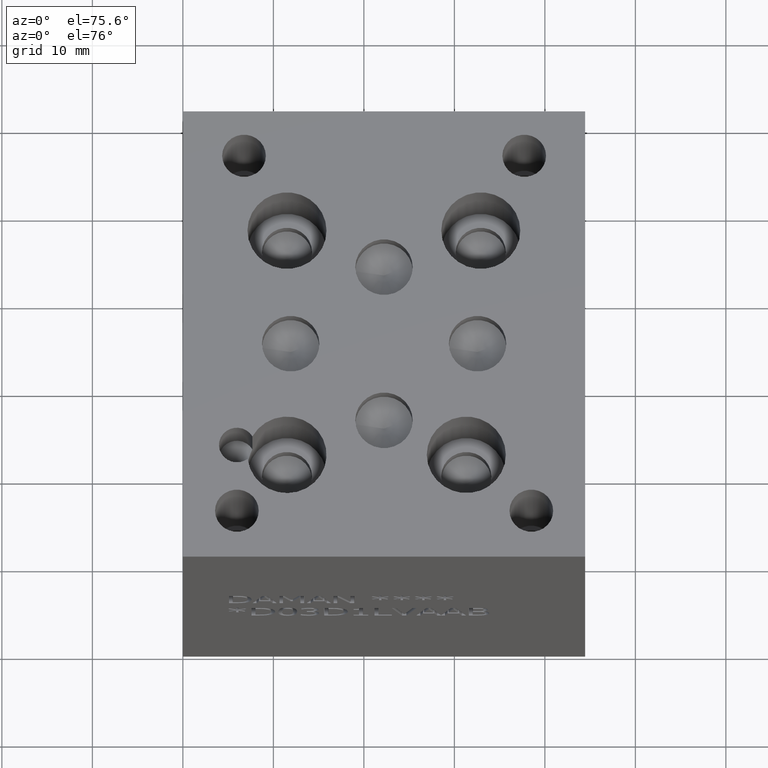
[diagram: clean part render]
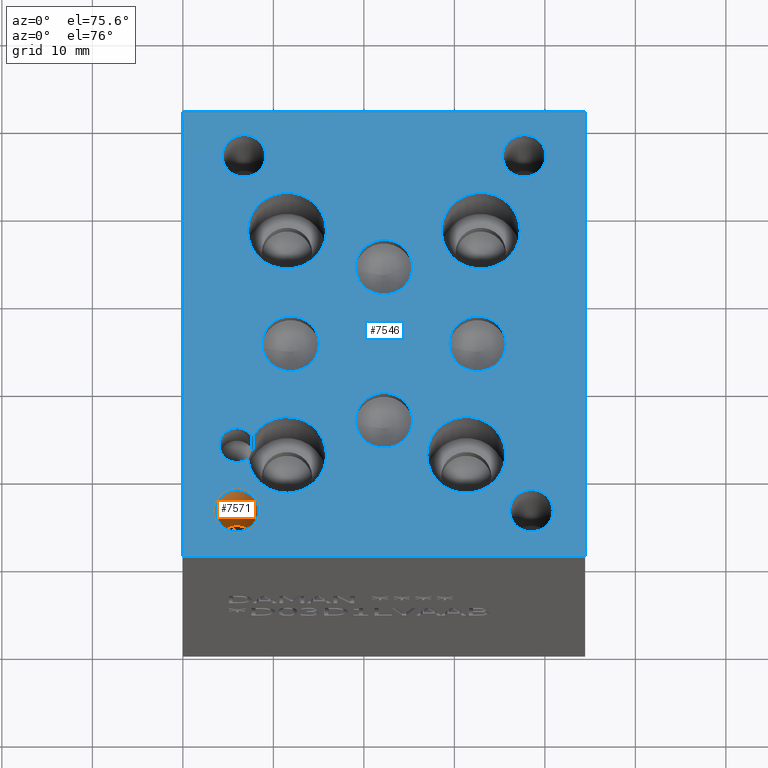
[diagram: same view with the hole feature highlighted: cylindrical wall and planar end face, labeled with their STEP entity ids]
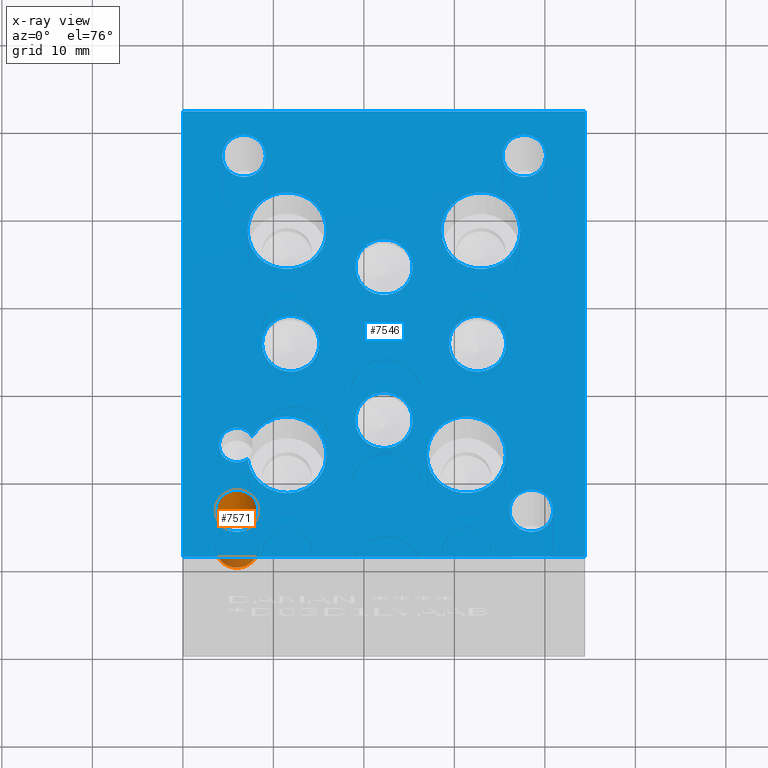
[diagram: x-ray of the same camera — body ghosted, the hole faces saturated]
A machine part, auxiliary view. The highlighted faces form one hole feature of diameter 4.826 mm: the cylindrical wall (entity #7571, orange) and its adjacent planar end face (entity #7546, blue) — they share a circular edge in the B-rep.
The next image is the same camera in x-ray (body ghosted, the hole faces saturated) — the bore reads through the body.
Wall:
#98=CIRCLE('',#7936,2.413);
#99=CIRCLE('',#7937,2.413);
#142=CIRCLE('',#8004,2.413);
#143=CIRCLE('',#8005,2.413);
#172=CYLINDRICAL_SURFACE('',#8007,2.413);
#822=FACE_OUTER_BOUND('',#1257,.T.);
#1257=EDGE_LOOP('',(#6583,#6584,#6585,#6586,#6587,#6588));
#2043=LINE('',#12669,#2821);
#2821=VECTOR('',#9619,2.413);
#3483=VERTEX_POINT('',#12524);
#3484=VERTEX_POINT('',#12525);
#3534=VERTEX_POINT('',#12662);
#3535=VERTEX_POINT('',#12663);
#4496=EDGE_CURVE('',#3483,#3484,#98,.T.);
#4497=EDGE_CURVE('',#3484,#3483,#99,.T.);
#4559=EDGE_CURVE('',#3534,#3535,#142,.T.);
#4560=EDGE_CURVE('',#3535,#3534,#143,.T.);
#4562=EDGE_CURVE('',#3484,#3535,#2043,.T.);
#6583=ORIENTED_EDGE('',*,*,#4496,.F.);
#6584=ORIENTED_EDGE('',*,*,#4497,.F.);
#6585=ORIENTED_EDGE('',*,*,#4562,.T.);
#6586=ORIENTED_EDGE('',*,*,#4559,.F.);
#6587=ORIENTED_EDGE('',*,*,#4560,.F.);
#6588=ORIENTED_EDGE('',*,*,#4562,.F.);
#7571=ADVANCED_FACE('',(#822),#172,.F.);
#7936=AXIS2_PLACEMENT_3D('',#12526,#9456,#9457);
#7937=AXIS2_PLACEMENT_3D('',#12527,#9458,#9459);
#8004=AXIS2_PLACEMENT_3D('',#12664,#9611,#9612);
#8005=AXIS2_PLACEMENT_3D('',#12665,#9613,#9614);
#8007=AXIS2_PLACEMENT_3D('',#12668,#9617,#9618);
#9456=DIRECTION('center_axis',(0.,0.,-1.));
#9457=DIRECTION('ref_axis',(1.,0.,0.));
#9458=DIRECTION('center_axis',(0.,0.,-1.));
#9459=DIRECTION('ref_axis',(1.,0.,0.));
#9611=DIRECTION('center_axis',(0.,0.,1.));
#9612=DIRECTION('ref_axis',(1.,0.,0.));
#9613=DIRECTION('center_axis',(0.,0.,1.));
#9614=DIRECTION('ref_axis',(1.,0.,0.));
#9617=DIRECTION('center_axis',(0.,0.,1.));
#9618=DIRECTION('ref_axis',(1.,0.,0.));
#9619=DIRECTION('',(0.,0.,-1.));
#12524=CARTESIAN_POINT('',(8.382,5.2324,44.45));
#12525=CARTESIAN_POINT('',(3.556,5.2324,44.45));
#12526=CARTESIAN_POINT('Origin',(5.969,5.2324,44.45));
#12527=CARTESIAN_POINT('Origin',(5.969,5.2324,44.45));
#12662=CARTESIAN_POINT('',(8.382,5.2324,28.448));
#12663=CARTESIAN_POINT('',(3.556,5.2324,28.448));
#12664=CARTESIAN_POINT('Origin',(5.969,5.2324,28.448));
#12665=CARTESIAN_POINT('Origin',(5.969,5.2324,28.448));
#12668=CARTESIAN_POINT('Origin',(5.969,5.2324,36.449));
#12669=CARTESIAN_POINT('',(3.556,5.2324,36.449));
End face:
#76=CIRCLE('',#7900,4.3688);
#77=CIRCLE('',#7901,4.3688);
#83=CIRCLE('',#7911,4.3688);
#89=CIRCLE('',#7921,4.3688);
#90=CIRCLE('',#7922,4.3688);
#96=CIRCLE('',#7932,4.3688);
#97=CIRCLE('',#7933,4.3688);
#98=CIRCLE('',#7936,2.413);
#99=CIRCLE('',#7937,2.413);
#100=CIRCLE('',#7938,2.413);
#101=CIRCLE('',#7939,2.413);
#102=CIRCLE('',#7940,2.413);
#103=CIRCLE('',#7941,2.413);
#104=CIRCLE('',#7942,2.413);
#105=CIRCLE('',#7943,2.413);
#106=CIRCLE('',#7944,1.9812);
#107=CIRCLE('',#7945,3.175);
#108=CIRCLE('',#7946,3.175);
#109=CIRCLE('',#7947,3.175);
#110=CIRCLE('',#7948,3.175);
#111=CIRCLE('',#7949,3.175);
#112=CIRCLE('',#7950,3.175);
#113=CIRCLE('',#7951,3.175);
#114=CIRCLE('',#7952,3.175);
#211=FACE_BOUND('',#1217,.T.);
#212=FACE_BOUND('',#1218,.T.);
#213=FACE_BOUND('',#1219,.T.);
#214=FACE_BOUND('',#1220,.T.);
#215=FACE_BOUND('',#1221,.T.);
#216=FACE_BOUND('',#1222,.T.);
#217=FACE_BOUND('',#1223,.T.);
#218=FACE_BOUND('',#1224,.T.);
#219=FACE_BOUND('',#1225,.T.);
#220=FACE_BOUND('',#1226,.T.);
#221=FACE_BOUND('',#1227,.T.);
#222=FACE_BOUND('',#1228,.T.);
#797=FACE_OUTER_BOUND('',#1216,.T.);
#1216=EDGE_LOOP('',(#6443,#6444,#6445,#6446));
#1217=EDGE_LOOP('',(#6447,#6448));
#1218=EDGE_LOOP('',(#6449,#6450));
#1219=EDGE_LOOP('',(#6451,#6452));
#1220=EDGE_LOOP('',(#6453,#6454));
#1221=EDGE_LOOP('',(#6455,#6456));
#1222=EDGE_LOOP('',(#6457,#6458));
#1223=EDGE_LOOP('',(#6459,#6460));
#1224=EDGE_LOOP('',(#6461,#6462));
#1225=EDGE_LOOP('',(#6463,#6464));
#1226=EDGE_LOOP('',(#6465,#6466));
#1227=EDGE_LOOP('',(#6467,#6468));
#1228=EDGE_LOOP('',(#6469,#6470));
#1612=LINE('',#11386,#2390);
#2021=LINE('',#12520,#2799);
#2022=LINE('',#12522,#2800);
#2023=LINE('',#12523,#2801);
#2390=VECTOR('',#8562,10.);
#2799=VECTOR('',#9453,10.);
#2800=VECTOR('',#9454,10.);
#2801=VECTOR('',#9455,10.);
#3138=VERTEX_POINT('',#11383);
#3139=VERTEX_POINT('',#11385);
#3452=VERTEX_POINT('',#12427);
#3453=VERTEX_POINT('',#12428);
#3461=VERTEX_POINT('',#12450);
#3464=VERTEX_POINT('',#12469);
#3471=VERTEX_POINT('',#12489);
#3472=VERTEX_POINT('',#12490);
#3479=VERTEX_POINT('',#12511);
#3480=VERTEX_POINT('',#12512);
#3481=VERTEX_POINT('',#12519);
#3482=VERTEX_POINT('',#12521);
#3483=VERTEX_POINT('',#12524);
#3484=VERTEX_POINT('',#12525);
#3485=VERTEX_POINT('',#12528);
#3486=VERTEX_POINT('',#12529);
#3487=VERTEX_POINT('',#12532);
#3488=VERTEX_POINT('',#12533);
#3489=VERTEX_POINT('',#12536);
#3490=VERTEX_POINT('',#12537);
#3491=VERTEX_POINT('',#12541);
#3492=VERTEX_POINT('',#12542);
#3493=VERTEX_POINT('',#12545);
#3494=VERTEX_POINT('',#12546);
#3495=VERTEX_POINT('',#12549);
#3496=VERTEX_POINT('',#12550);
#3497=VERTEX_POINT('',#12553);
#3498=VERTEX_POINT('',#12554);
#4003=EDGE_CURVE('',#3139,#3138,#1612,.T.);
#4456=EDGE_CURVE('',#3452,#3453,#76,.T.);
#4457=EDGE_CURVE('',#3453,#3452,#77,.T.);
#4471=EDGE_CURVE('',#3461,#3464,#83,.T.);
#4479=EDGE_CURVE('',#3471,#3472,#89,.T.);
#4480=EDGE_CURVE('',#3472,#3471,#90,.T.);
#4489=EDGE_CURVE('',#3479,#3480,#96,.T.);
#4490=EDGE_CURVE('',#3480,#3479,#97,.T.);
#4493=EDGE_CURVE('',#3138,#3481,#2021,.T.);
#4494=EDGE_CURVE('',#3481,#3482,#2022,.T.);
#4495=EDGE_CURVE('',#3482,#3139,#2023,.T.);
#4496=EDGE_CURVE('',#3483,#3484,#98,.T.);
#4497=EDGE_CURVE('',#3484,#3483,#99,.T.);
#4498=EDGE_CURVE('',#3485,#3486,#100,.T.);
#4499=EDGE_CURVE('',#3486,#3485,#101,.T.);
#4500=EDGE_CURVE('',#3487,#3488,#102,.T.);
#4501=EDGE_CURVE('',#3488,#3487,#103,.T.);
#4502=EDGE_CURVE('',#3489,#3490,#104,.T.);
#4503=EDGE_CURVE('',#3490,#3489,#105,.T.);
#4504=EDGE_CURVE('',#3464,#3461,#106,.T.);
#4505=EDGE_CURVE('',#3491,#3492,#107,.T.);
#4506=EDGE_CURVE('',#3492,#3491,#108,.T.);
#4507=EDGE_CURVE('',#3493,#3494,#109,.T.);
#4508=EDGE_CURVE('',#3494,#3493,#110,.T.);
#4509=EDGE_CURVE('',#3495,#3496,#111,.T.);
#4510=EDGE_CURVE('',#3496,#3495,#112,.T.);
#4511=EDGE_CURVE('',#3497,#3498,#113,.T.);
#4512=EDGE_CURVE('',#3498,#3497,#114,.T.);
#6443=ORIENTED_EDGE('',*,*,#4003,.T.);
#6444=ORIENTED_EDGE('',*,*,#4493,.T.);
#6445=ORIENTED_EDGE('',*,*,#4494,.T.);
#6446=ORIENTED_EDGE('',*,*,#4495,.T.);
#6447=ORIENTED_EDGE('',*,*,#4496,.T.);
#6448=ORIENTED_EDGE('',*,*,#4497,.T.);
#6449=ORIENTED_EDGE('',*,*,#4498,.T.);
#6450=ORIENTED_EDGE('',*,*,#4499,.T.);
#6451=ORIENTED_EDGE('',*,*,#4500,.T.);
#6452=ORIENTED_EDGE('',*,*,#4501,.T.);
#6453=ORIENTED_EDGE('',*,*,#4502,.T.);
#6454=ORIENTED_EDGE('',*,*,#4503,.T.);
#6455=ORIENTED_EDGE('',*,*,#4471,.T.);
#6456=ORIENTED_EDGE('',*,*,#4504,.T.);
#6457=ORIENTED_EDGE('',*,*,#4505,.T.);
#6458=ORIENTED_EDGE('',*,*,#4506,.T.);
#6459=ORIENTED_EDGE('',*,*,#4507,.T.);
#6460=ORIENTED_EDGE('',*,*,#4508,.T.);
#6461=ORIENTED_EDGE('',*,*,#4509,.T.);
#6462=ORIENTED_EDGE('',*,*,#4510,.T.);
#6463=ORIENTED_EDGE('',*,*,#4511,.T.);
#6464=ORIENTED_EDGE('',*,*,#4512,.T.);
#6465=ORIENTED_EDGE('',*,*,#4489,.T.);
#6466=ORIENTED_EDGE('',*,*,#4490,.T.);
#6467=ORIENTED_EDGE('',*,*,#4479,.T.);
#6468=ORIENTED_EDGE('',*,*,#4480,.T.);
#6469=ORIENTED_EDGE('',*,*,#4456,.T.);
#6470=ORIENTED_EDGE('',*,*,#4457,.T.);
#6881=PLANE('',#7935);
#7546=ADVANCED_FACE('',(#797,#211,#212,#213,#214,#215,#216,#217,#218,#219,
#220,#221,#222),#6881,.T.);
#7900=AXIS2_PLACEMENT_3D('',#12429,#9368,#9369);
#7901=AXIS2_PLACEMENT_3D('',#12430,#9370,#9371);
#7911=AXIS2_PLACEMENT_3D('',#12471,#9396,#9397);
#7921=AXIS2_PLACEMENT_3D('',#12491,#9418,#9419);
#7922=AXIS2_PLACEMENT_3D('',#12492,#9420,#9421);
#7932=AXIS2_PLACEMENT_3D('',#12513,#9443,#9444);
#7933=AXIS2_PLACEMENT_3D('',#12514,#9445,#9446);
#7935=AXIS2_PLACEMENT_3D('',#12518,#9451,#9452);
#7936=AXIS2_PLACEMENT_3D('',#12526,#9456,#9457);
#7937=AXIS2_PLACEMENT_3D('',#12527,#9458,#9459);
#7938=AXIS2_PLACEMENT_3D('',#12530,#9460,#9461);
#7939=AXIS2_PLACEMENT_3D('',#12531,#9462,#9463);
#7940=AXIS2_PLACEMENT_3D('',#12534,#9464,#9465);
#7941=AXIS2_PLACEMENT_3D('',#12535,#9466,#9467);
#7942=AXIS2_PLACEMENT_3D('',#12538,#9468,#9469);
#7943=AXIS2_PLACEMENT_3D('',#12539,#9470,#9471);
#7944=AXIS2_PLACEMENT_3D('',#12540,#9472,#9473);
#7945=AXIS2_PLACEMENT_3D('',#12543,#9474,#9475);
#7946=AXIS2_PLACEMENT_3D('',#12544,#9476,#9477);
#7947=AXIS2_PLACEMENT_3D('',#12547,#9478,#9479);
#7948=AXIS2_PLACEMENT_3D('',#12548,#9480,#9481);
#7949=AXIS2_PLACEMENT_3D('',#12551,#9482,#9483);
#7950=AXIS2_PLACEMENT_3D('',#12552,#9484,#9485);
#7951=AXIS2_PLACEMENT_3D('',#12555,#9486,#9487);
#7952=AXIS2_PLACEMENT_3D('',#12556,#9488,#9489);
#8562=DIRECTION('',(1.,0.,0.));
#9368=DIRECTION('center_axis',(0.,0.,-1.));
#9369=DIRECTION('ref_axis',(1.,0.,0.));
#9370=DIRECTION('center_axis',(0.,0.,-1.));
#9371=DIRECTION('ref_axis',(1.,0.,0.));
#9396=DIRECTION('center_axis',(0.,0.,-1.));
#9397=DIRECTION('ref_axis',(1.,0.,0.));
#9418=DIRECTION('center_axis',(0.,0.,-1.));
#9419=DIRECTION('ref_axis',(1.,0.,0.));
#9420=DIRECTION('center_axis',(0.,0.,-1.));
#9421=DIRECTION('ref_axis',(1.,0.,0.));
#9443=DIRECTION('center_axis',(0.,0.,-1.));
#9444=DIRECTION('ref_axis',(1.,0.,0.));
#9445=DIRECTION('center_axis',(0.,0.,-1.));
#9446=DIRECTION('ref_axis',(1.,0.,0.));
#9451=DIRECTION('center_axis',(0.,0.,1.));
#9452=DIRECTION('ref_axis',(1.,0.,0.));
#9453=DIRECTION('',(0.,1.,0.));
#9454=DIRECTION('',(-1.,0.,0.));
#9455=DIRECTION('',(0.,-1.,0.));
#9456=DIRECTION('center_axis',(0.,0.,-1.));
#9457=DIRECTION('ref_axis',(1.,0.,0.));
#9458=DIRECTION('center_axis',(0.,0.,-1.));
#9459=DIRECTION('ref_axis',(1.,0.,0.));
#9460=DIRECTION('center_axis',(0.,0.,-1.));
#9461=DIRECTION('ref_axis',(1.,0.,0.));
#9462=DIRECTION('center_axis',(0.,0.,-1.));
#9463=DIRECTION('ref_axis',(1.,0.,0.));
#9464=DIRECTION('center_axis',(0.,0.,-1.));
#9465=DIRECTION('ref_axis',(1.,0.,0.));
#9466=DIRECTION('center_axis',(0.,0.,-1.));
#9467=DIRECTION('ref_axis',(1.,0.,0.));
#9468=DIRECTION('center_axis',(0.,0.,-1.));
#9469=DIRECTION('ref_axis',(1.,0.,0.));
#9470=DIRECTION('center_axis',(0.,0.,-1.));
#9471=DIRECTION('ref_axis',(1.,0.,0.));
#9472=DIRECTION('center_axis',(0.,0.,-1.));
#9473=DIRECTION('ref_axis',(1.,0.,0.));
#9474=DIRECTION('center_axis',(0.,0.,-1.));
#9475=DIRECTION('ref_axis',(1.,0.,0.));
#9476=DIRECTION('center_axis',(0.,0.,-1.));
#9477=DIRECTION('ref_axis',(1.,0.,0.));
#9478=DIRECTION('center_axis',(0.,0.,-1.));
#9479=DIRECTION('ref_axis',(1.,0.,0.));
#9480=DIRECTION('center_axis',(0.,0.,-1.));
#9481=DIRECTION('ref_axis',(1.,0.,0.));
#9482=DIRECTION('center_axis',(0.,0.,-1.));
#9483=DIRECTION('ref_axis',(1.,0.,0.));
#9484=DIRECTION('center_axis',(0.,0.,-1.));
#9485=DIRECTION('ref_axis',(1.,0.,0.));
#9486=DIRECTION('center_axis',(0.,0.,-1.));
#9487=DIRECTION('ref_axis',(1.,0.,0.));
#9488=DIRECTION('center_axis',(0.,0.,-1.));
#9489=DIRECTION('ref_axis',(1.,0.,0.));
#11383=CARTESIAN_POINT('',(44.45,0.,44.45));
#11385=CARTESIAN_POINT('',(0.,0.,44.45));
#11386=CARTESIAN_POINT('',(0.,0.,44.45));
#12427=CARTESIAN_POINT('',(15.875,37.1856,44.45));
#12428=CARTESIAN_POINT('',(7.1374,37.1856,44.45));
#12429=CARTESIAN_POINT('Origin',(11.5062,37.1856,44.45));
#12430=CARTESIAN_POINT('Origin',(11.5062,37.1856,44.45));
#12450=CARTESIAN_POINT('',(7.68218652135304,13.7204604921583,44.45));
#12469=CARTESIAN_POINT('',(7.1621157835398,11.1437463820835,44.45));
#12471=CARTESIAN_POINT('Origin',(11.5062,11.6078,44.45));
#12489=CARTESIAN_POINT('',(35.687,11.6078,44.45));
#12490=CARTESIAN_POINT('',(26.9494,11.6078,44.45));
#12491=CARTESIAN_POINT('Origin',(31.3182,11.6078,44.45));
#12492=CARTESIAN_POINT('Origin',(31.3182,11.6078,44.45));
#12511=CARTESIAN_POINT('',(37.2872,37.1856,44.45));
#12512=CARTESIAN_POINT('',(28.5496,37.1856,44.45));
#12513=CARTESIAN_POINT('Origin',(32.9184,37.1856,44.45));
#12514=CARTESIAN_POINT('Origin',(32.9184,37.1856,44.45));
#12518=CARTESIAN_POINT('Origin',(22.225,25.4,44.45));
#12519=CARTESIAN_POINT('',(44.45,50.8,44.45));
#12520=CARTESIAN_POINT('',(44.45,0.,44.45));
#12521=CARTESIAN_POINT('',(0.,50.8,44.45));
#12522=CARTESIAN_POINT('',(44.45,50.8,44.45));
#12523=CARTESIAN_POINT('',(0.,50.8,44.45));
#12524=CARTESIAN_POINT('',(8.382,5.2324,44.45));
#12525=CARTESIAN_POINT('',(3.556,5.2324,44.45));
#12526=CARTESIAN_POINT('Origin',(5.969,5.2324,44.45));
#12527=CARTESIAN_POINT('Origin',(5.969,5.2324,44.45));
#12528=CARTESIAN_POINT('',(40.132,45.72,44.45));
#12529=CARTESIAN_POINT('',(35.306,45.72,44.45));
#12530=CARTESIAN_POINT('Origin',(37.719,45.72,44.45));
#12531=CARTESIAN_POINT('Origin',(37.719,45.72,44.45));
#12532=CARTESIAN_POINT('',(9.1694,45.72,44.45));
#12533=CARTESIAN_POINT('',(4.3434,45.72,44.45));
#12534=CARTESIAN_POINT('Origin',(6.7564,45.72,44.45));
#12535=CARTESIAN_POINT('Origin',(6.7564,45.72,44.45));
#12536=CARTESIAN_POINT('',(40.9194,5.2324,44.45));
#12537=CARTESIAN_POINT('',(36.0934,5.2324,44.45));
#12538=CARTESIAN_POINT('Origin',(38.5064,5.2324,44.45));
#12539=CARTESIAN_POINT('Origin',(38.5064,5.2324,44.45));
#12540=CARTESIAN_POINT('Origin',(5.969,12.7254,44.45));
#12541=CARTESIAN_POINT('',(25.4,15.5448,44.45));
#12542=CARTESIAN_POINT('',(19.05,15.5448,44.45));
#12543=CARTESIAN_POINT('Origin',(22.225,15.5448,44.45));
#12544=CARTESIAN_POINT('Origin',(22.225,15.5448,44.45));
#12545=CARTESIAN_POINT('',(35.7378,24.2824,44.45));
#12546=CARTESIAN_POINT('',(29.3878,24.2824,44.45));
#12547=CARTESIAN_POINT('Origin',(32.5628,24.2824,44.45));
#12548=CARTESIAN_POINT('Origin',(32.5628,24.2824,44.45));
#12549=CARTESIAN_POINT('',(15.0876,24.2824,44.45));
#12550=CARTESIAN_POINT('',(8.7376,24.2824,44.45));
#12551=CARTESIAN_POINT('Origin',(11.9126,24.2824,44.45));
#12552=CARTESIAN_POINT('Origin',(11.9126,24.2824,44.45));
#12553=CARTESIAN_POINT('',(25.4,33.02,44.45));
#12554=CARTESIAN_POINT('',(19.05,33.02,44.45));
#12555=CARTESIAN_POINT('Origin',(22.225,33.02,44.45));
#12556=CARTESIAN_POINT('Origin',(22.225,33.02,44.45));